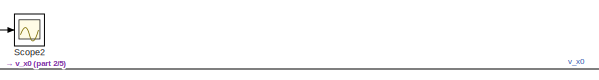
[diagram: root canvas - part 1/5, top center region]
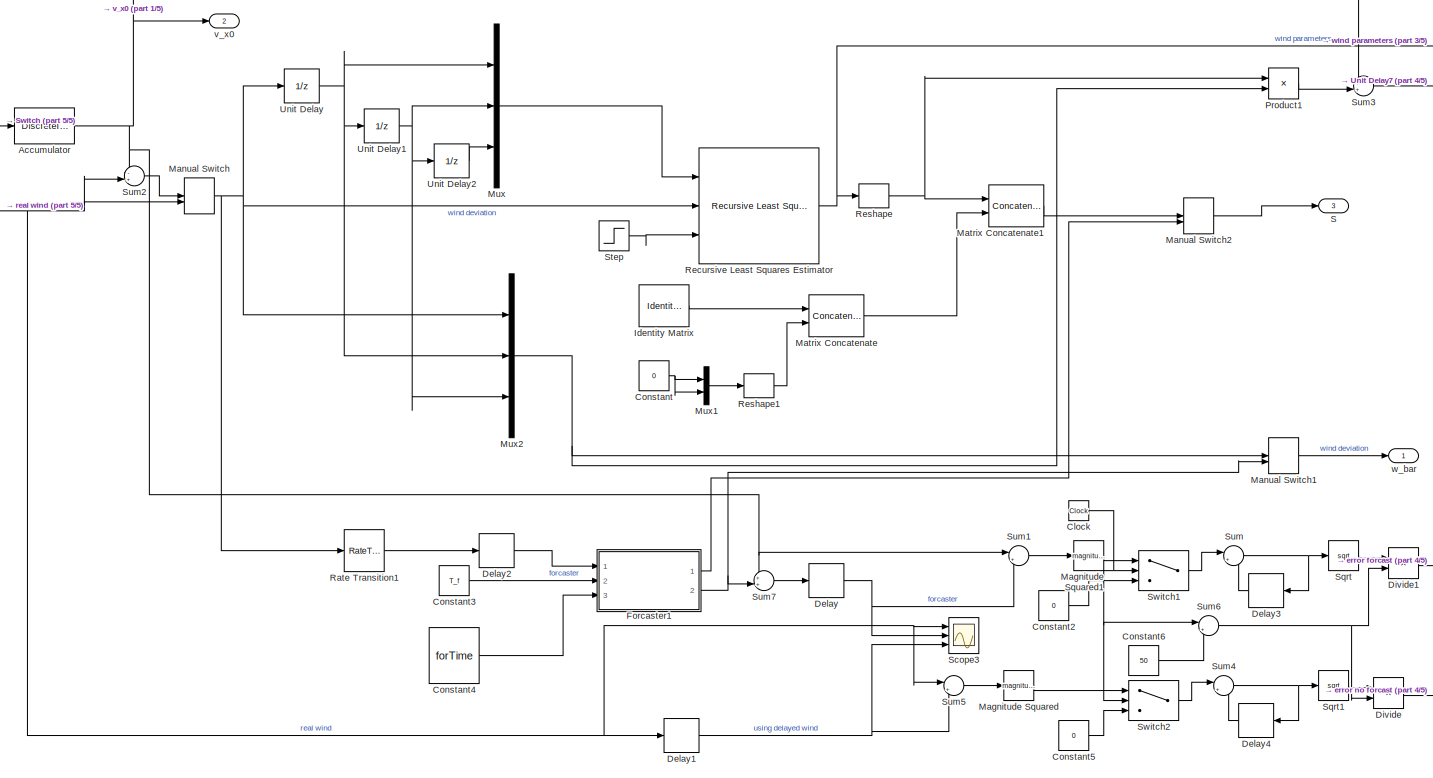
[diagram: root canvas - part 2/5, center side, full height]
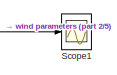
[diagram: root canvas - part 3/5, top right region]
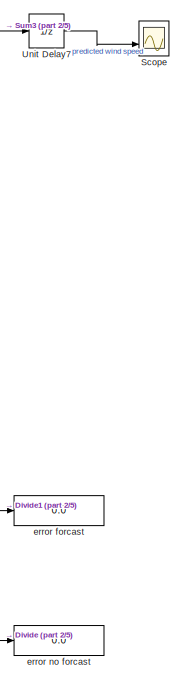
[diagram: root canvas - part 4/5, right side, full height]
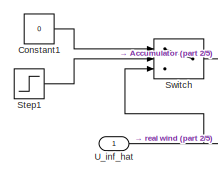
[diagram: root canvas - part 5/5, top left region]
MODEL slx_71b4a83b510e
KIND model
CONFIG AbsTol = auto
CONFIG EnableMultiTasking = off
CONFIG FixedStep = DT
CONFIG MaxStep = auto
CONFIG MinStep = auto
CONFIG RelTol = 1e-3
CONFIG SampleTimeConstraint = Unconstrained
CONFIG Solver = FixedStepAuto
CONFIG SolverName = FixedStepAuto
CONFIG StartTime = 0.0
CONFIG StopTime = 10.0
BLOCK [DiscreteIntegrator] Accumulator
  ICPrevOutput = DiscIntNeverNeededParam
  ICPrevScaledInput = DiscIntNeverNeededParam
  InitialConditionSetting = Auto
  IntegratorMethod = Accumulation: Forward Euler
  Ports = [1, 1]
  SampleTime = T_s
  gainval = T_s/T_mean
BLOCK [Clock] Clock
BLOCK [Constant] Constant
  Value = 0
BLOCK [Constant] Constant1
  Value = 0
BLOCK [Constant] Constant2
  Value = 0
BLOCK [Constant] Constant3
  Value = T_f
BLOCK [Constant] Constant4
  Value = forTime
BLOCK [Constant] Constant5
  Value = 0
BLOCK [Constant] Constant6
  Value = 50
BLOCK [Delay] Delay
  DelayLength = ceil(forTime/T_f)
  InitialCondition = 0
  InputPortMap = u0
  Ports = [1, 1]
  SampleTime = T_f
BLOCK [Delay] Delay1
  DelayLength = ceil(4.6/T_f)
  InitialCondition = 0
  InputPortMap = u0
  Ports = [1, 1]
  SampleTime = T_f
BLOCK [Delay] Delay2
  DelayLength = ceil(4.6/T_f)-ceil(forTime/T_f)
  InitialCondition = 0
  InputPortMap = u0
  Ports = [1, 1]
  SampleTime = T_f
BLOCK [Delay] Delay3
  DelayLength = 1
  InitialCondition = 0
  InputPortMap = u0
  Ports = [1, 1]
BLOCK [Delay] Delay4
  DelayLength = 1
  InitialCondition = 0
  InputPortMap = u0
  Ports = [1, 1]
BLOCK [Product] Divide
  Inputs = */
  Ports = [2, 1]
BLOCK [Product] Divide1
  Inputs = */
  Ports = [2, 1]
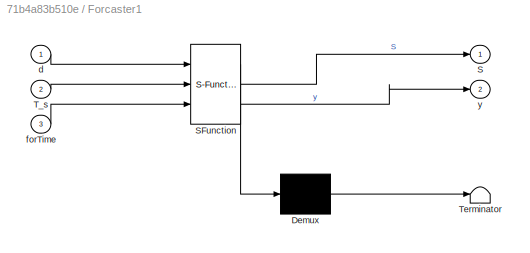
BLOCK [SubSystem] Forcaster1
  ErrorFcn = Stateflow.Translate.translate
  PermitHierarchicalResolution = ExplicitOnly
  Ports = [3, 2]
  RequestExecContextInheritance = off
  SFBlockType = MATLAB Function
  TreatAsAtomicUnit = on
BLOCK [Demux] Forcaster1/ Demux 
  Outputs = 1
  Ports = [1, 1]
BLOCK [S-Function] Forcaster1/ SFunction 
  EnableBusSupport = on
  FunctionName = sf_sfun
  PortCounts = [3 3]
  Ports = [3, 3]
  SFcnIsStateOwnerBlock = off
  SFunctionDeploymentMode = off
  Tag = Stateflow S-Function 1
BLOCK [Terminator] Forcaster1/ Terminator 
BLOCK [Outport] Forcaster1/S
BLOCK [Inport] Forcaster1/T_s
  Port = 2
BLOCK [Inport] Forcaster1/d
BLOCK [Inport] Forcaster1/forTime
  Port = 3
BLOCK [Outport] Forcaster1/y
  Port = 2
BLOCK [Reference] Identity Matrix  REF=dspmtrx3/Identity Matrix
  Ports = [0, 1]
  SourceBlock = dspmtrx3/Identity Matrix
  SourceProductBaseCode = DS
  SourceType = Identity Matrix
BLOCK [Math] Magnitude Squared
  Operator = magnitude^2
  Ports = [1, 1]
BLOCK [Math] Magnitude Squared1
  Operator = magnitude^2
  Ports = [1, 1]
BLOCK [ManualSwitch] Manual Switch
BLOCK [ManualSwitch] Manual Switch1
BLOCK [ManualSwitch] Manual Switch2
  CurrentSetting = 0
BLOCK [Concatenate] Matrix Concatenate
  ConcatenateDimension = 2
  Mode = Multidimensional array
  Ports = [2, 1]
BLOCK [Concatenate] Matrix Concatenate1
  Mode = Multidimensional array
  Ports = [2, 1]
BLOCK [Mux] Mux
  DisplayOption = bar
  Inputs = 3
  Ports = [3, 1]
BLOCK [Mux] Mux1
  DisplayOption = bar
  Inputs = 2
  Ports = [2, 1]
BLOCK [Mux] Mux2
  DisplayOption = bar
  Inputs = 3
  Ports = [3, 1]
BLOCK [Product] Product1
  Multiplication = Matrix(*)
  Ports = [2, 1]
BLOCK [RateTransition] Rate Transition1
  Deterministic = off
  OutPortSampleTime = T_f
BLOCK [Reference] Recursive Least Squares Estimator  REF=ctrlSharedLib/Recursive Least Squares Estimator
  Ports = [3, 1]
  SourceBlock = ctrlSharedLib/Recursive Least Squares Estimator
  SourceProductBaseCode = CT,ID
  SourceType = idEstimatorsRLS
BLOCK [Reshape] Reshape
  OutputDimensionality = Row vector (2-D)
  Ports = [1, 1]
BLOCK [Reshape] Reshape1
  OutputDimensionality = Column vector (2-D)
  Ports = [1, 1]
BLOCK [Outport] S
  Port = 3
  SampleTime = T_s
BLOCK [Scope] Scope
  Floating = off
  NumInputPorts = 2
  Ports = [2]
  ScopeSpecificationString = Simulink.scopes.TimeScopeBlockCfg('CurrentConfiguration', extmgr.ConfigurationSet(extmgr.Configuration('Core','General UI',true),extmgr.Configuration('Core','Source UI',true),extmgr.Configuration('Sources','WiredSimulink',true),extmgr.Configuration('Visuals','Time Domain',true,'SerializedDisplays',{struct('MinYLimReal','-2.10095','MaxYLimReal','18.90858','YLabelReal','','MinYLimMag','0.00000','Max...<+1773ch>
BLOCK [Scope] Scope1
  Floating = off
  NumInputPorts = 1
  Ports = [1]
  ScopeSpecificationString = Simulink.scopes.TimeScopeBlockCfg('CurrentConfiguration', extmgr.ConfigurationSet(extmgr.Configuration('Core','General UI',true),extmgr.Configuration('Core','Source UI',true),extmgr.Configuration('Sources','WiredSimulink',true,'DataLoggingVariableName','ScopeData1'),extmgr.Configuration('Visuals','Time Domain',true,'SerializedDisplays',{struct('MinYLimReal','-12.94829','MaxYLimReal','9.10808','YLa...<+1611ch>
BLOCK [Scope] Scope2
  Floating = off
  NumInputPorts = 1
  Ports = [1]
  ScopeSpecificationString = Simulink.scopes.TimeScopeBlockCfg('CurrentConfiguration', extmgr.ConfigurationSet(extmgr.Configuration('Core','General UI',true),extmgr.Configuration('Core','Source UI',true),extmgr.Configuration('Sources','WiredSimulink',true,'DataLoggingVariableName','ScopeData2'),extmgr.Configuration('Visuals','Time Domain',true,'SerializedDisplays',{struct('MinYLimReal','-1.76339','MaxYLimReal','15.87053','YLa...<+1453ch>
BLOCK [Scope] Scope3
  Floating = off
  NumInputPorts = 3
  Ports = [3]
  ScopeSpecificationString = Simulink.scopes.TimeScopeBlockCfg('CurrentConfiguration', extmgr.ConfigurationSet(extmgr.Configuration('Core','General UI',true),extmgr.Configuration('Core','Source UI',true),extmgr.Configuration('Sources','WiredSimulink',true,'DataLoggingVariableName','ScopeData1'),extmgr.Configuration('Visuals','Time Domain',true,'SerializedDisplays',{struct('MinYLimReal','-3.75237','MaxYLimReal','33.7713','YLab...<+1846ch>
BLOCK [Sqrt] Sqrt
BLOCK [Sqrt] Sqrt1
BLOCK [Step] Step
  SampleTime = T_s
  Time = T_mean
BLOCK [Step] Step1
  SampleTime = T_s
  Time = T_mean
BLOCK [Sum] Sum
  Inputs = |++
  Ports = [2, 1]
BLOCK [Sum] Sum1
  Inputs = |+-
  Ports = [2, 1]
BLOCK [Sum] Sum2
  Inputs = -+|
  Ports = [2, 1]
BLOCK [Sum] Sum3
  Inputs = ++|
  Ports = [2, 1]
BLOCK [Sum] Sum4
  Inputs = |++
  Ports = [2, 1]
BLOCK [Sum] Sum5
  Inputs = |+-
  Ports = [2, 1]
BLOCK [Sum] Sum6
  Inputs = |+-
  Ports = [2, 1]
BLOCK [Sum] Sum7
  Inputs = ++|
  Ports = [2, 1]
BLOCK [Switch] Switch
  Criteria = u2 > Threshold
  InputSameDT = off
  SaturateOnIntegerOverflow = off
BLOCK [Switch] Switch1
  Criteria = u2 > Threshold
  InputSameDT = off
  SaturateOnIntegerOverflow = off
  Threshold = 50
BLOCK [Switch] Switch2
  Criteria = u2 > Threshold
  InputSameDT = off
  SaturateOnIntegerOverflow = off
  Threshold = 50
BLOCK [Inport] U_inf_hat
  SampleTime = T_s
BLOCK [UnitDelay] Unit Delay
  HasFrameUpgradeWarning = on
  SampleTime = -1
BLOCK [UnitDelay] Unit Delay1
  HasFrameUpgradeWarning = on
  SampleTime = -1
BLOCK [UnitDelay] Unit Delay2
  HasFrameUpgradeWarning = on
  SampleTime = -1
BLOCK [UnitDelay] Unit Delay7
  HasFrameUpgradeWarning = on
  SampleTime = -1
BLOCK [Display] error forcast
  Decimation = 1
  Ports = [1]
BLOCK [Display] error no forcast
  Decimation = 1
  Ports = [1]
BLOCK [Outport] v_x0
  Port = 2
  SampleTime = T_s
BLOCK [Outport] w_bar
  SampleTime = T_s
NET Accumulator:1 -> Scope2:1, Sum1:1, Sum2:1, Sum3:1, Sum7:1, v_x0:1
NET Clock:1 -> Sum6:1, Switch1:2, Switch2:2
LINE Constant1:1 -> Switch:1
LINE Constant2:1 -> Switch1:3
LINE Constant3:1 -> Forcaster1:2
LINE Constant4:1 -> Forcaster1:3
LINE Constant5:1 -> Switch2:3
LINE Constant6:1 -> Sum6:2
NET Constant:1 -> Mux1:1, Mux1:2
NET Delay1:1 -> Scope3:3, Sum5:2
LINE Delay2:1 -> Forcaster1:1
LINE Delay3:1 -> Sum:2
LINE Delay4:1 -> Sum4:2
NET Delay:1 -> Scope3:2, Sum1:2
LINE Divide1:1 -> error forcast:1
LINE Divide:1 -> error no forcast:1
LINE Forcaster1:1 -> Manual Switch2:2
NET Forcaster1:2 -> Manual Switch1:2, Sum7:2
LINE Identity Matrix:1 -> Matrix Concatenate:1
LINE Magnitude Squared1:1 -> Switch1:1
LINE Magnitude Squared:1 -> Switch2:1
LINE Manual Switch1:1 -> w_bar:1
LINE Manual Switch2:1 -> S:1
NET Manual Switch:1 -> Mux2:1, Rate Transition1:1, Recursive Least Squares Estimator:2, Unit Delay:1
LINE Matrix Concatenate1:1 -> Manual Switch2:1
LINE Matrix Concatenate:1 -> Matrix Concatenate1:2
LINE Mux1:1 -> Reshape1:1
NET Mux2:1 -> Manual Switch1:1, Product1:2
LINE Mux:1 -> Recursive Least Squares Estimator:1
LINE Product1:1 -> Sum3:2
LINE Rate Transition1:1 -> Delay2:1
NET Recursive Least Squares Estimator:1 -> Reshape:1, Scope1:1
LINE Reshape1:1 -> Matrix Concatenate:2
NET Reshape:1 -> Matrix Concatenate1:1, Product1:1
LINE Sqrt1:1 -> Divide:1
LINE Sqrt:1 -> Divide1:1
LINE Step1:1 -> Switch:2
LINE Step:1 -> Recursive Least Squares Estimator:3
LINE Sum1:1 -> Magnitude Squared1:1
LINE Sum2:1 -> Manual Switch:1
LINE Sum3:1 -> Unit Delay7:1
NET Sum4:1 -> Delay4:1, Sqrt1:1
LINE Sum5:1 -> Magnitude Squared:1
NET Sum6:1 -> Divide1:2, Divide:2
LINE Sum7:1 -> Delay:1
NET Sum:1 -> Delay3:1, Sqrt:1
LINE Switch1:1 -> Sum:1
LINE Switch2:1 -> Sum4:1
LINE Switch:1 -> Accumulator:1
NET U_inf_hat:1 -> Delay1:1, Manual Switch:2, Scope3:1, Sum2:2, Sum5:1, Switch:3
NET Unit Delay1:1 -> Mux2:3, Mux:2, Unit Delay2:1
LINE Unit Delay2:1 -> Mux:3
LINE Unit Delay7:1 -> Scope:2
NET Unit Delay:1 -> Mux2:2, Mux:1, Unit Delay1:1
note: NET lines group one-source signal fan-out (src -> all destinations, sorted); 1:1 wires keep LINE
CHART Forcaster1 states=1 transitions=1
  STATE_LABEL 'eML_blk_kernel()'
  STATE_LABEL 'SCRIPT:\n%This function uses recursive least squares and numerical integration \n%to forcast the wind  signal.\n%USAGE: d last known windspeed\n%T_s the sample rate\n%forTime how far in the future the output is\n%returns y estimate of the windspeed at t+forTime\nfunction [S,y]= forcaster_2(d,T_s,forTime)\n\n\n%Set Forcast time in init callback\n\nnum_for = ceil(forTime/T_s);    %number of samples forcast\norde...<+808ch>'
CHART  states=0 transitions=0
